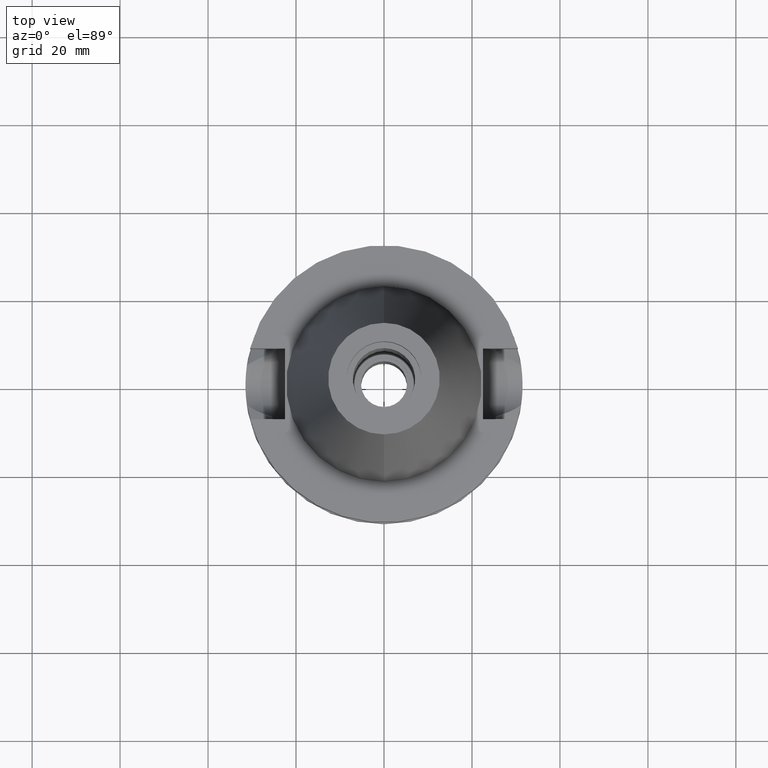
[diagram: clean part render]
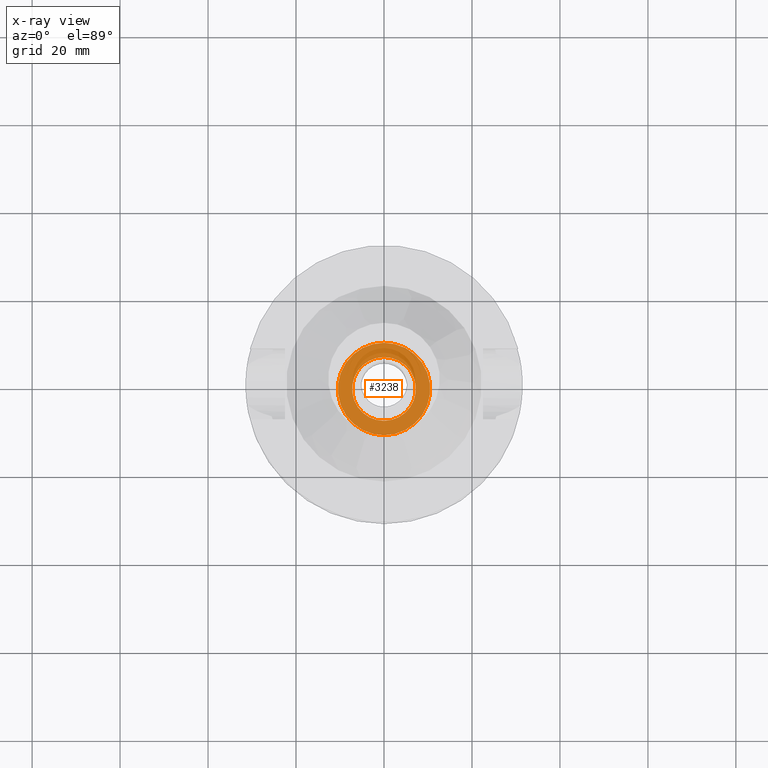
[diagram: x-ray — body ghosted, one internal face saturated and labeled with its STEP entity id]
A machine part, top view, then the same camera in x-ray: the body is ghosted and one INTERNAL B-rep face — a face not visible from any outside direction — is saturated and labeled: STEP entity #3238.
In plain terms, the highlighted planar face has unit normal (0, 0, -1).
Its self-contained STEP definition (entity closure, byte-faithful):
#22 = CARTESIAN_POINT ( 'NONE',  ( 0.0000000000000000000, 0.0000000000000000000, -8.200000000000001066 ) ) ;
#52 = FACE_BOUND ( 'NONE', #592, .T. ) ;
#198 = AXIS2_PLACEMENT_3D ( 'NONE', #22, #3113, #2842 ) ;
#318 = EDGE_LOOP ( 'NONE', ( #1509, #3216 ) ) ;
#332 = FACE_OUTER_BOUND ( 'NONE', #318, .T. ) ;
#378 = CARTESIAN_POINT ( 'NONE',  ( 0.0000000000000000000, 7.250000000000000000, -8.200000000000001066 ) ) ;
#399 = CARTESIAN_POINT ( 'NONE',  ( 0.0000000000000000000, 10.50000000000000000, -8.200000000000001066 ) ) ;
#475 = CARTESIAN_POINT ( 'NONE',  ( 0.0000000000000000000, -7.250000000000000000, -8.200000000000001066 ) ) ;
#592 = EDGE_LOOP ( 'NONE', ( #771, #3497 ) ) ;
#711 = CARTESIAN_POINT ( 'NONE',  ( 0.0000000000000000000, 0.0000000000000000000, -8.200000000000001066 ) ) ;
#729 = DIRECTION ( 'NONE',  ( 0.0000000000000000000, 0.0000000000000000000, -1.000000000000000000 ) ) ;
#771 = ORIENTED_EDGE ( 'NONE', *, *, #2990, .F. ) ;
#866 = DIRECTION ( 'NONE',  ( 0.0000000000000000000, 1.000000000000000000, 0.0000000000000000000 ) ) ;
#935 = CARTESIAN_POINT ( 'NONE',  ( 0.0000000000000000000, 0.0000000000000000000, -8.200000000000001066 ) ) ;
#939 = CIRCLE ( 'NONE', #950, 7.250000000000000000 ) ;
#950 = AXIS2_PLACEMENT_3D ( 'NONE', #935, #1993, #866 ) ;
#1075 = AXIS2_PLACEMENT_3D ( 'NONE', #711, #729, #2887 ) ;
#1290 = EDGE_CURVE ( 'NONE', #1622, #1994, #3543, .T. ) ;
#1332 = DIRECTION ( 'NONE',  ( 0.0000000000000000000, -1.000000000000000000, 0.0000000000000000000 ) ) ;
#1379 = EDGE_CURVE ( 'NONE', #1994, #1622, #1788, .T. ) ;
#1509 = ORIENTED_EDGE ( 'NONE', *, *, #1379, .F. ) ;
#1622 = VERTEX_POINT ( 'NONE', #2947 ) ;
#1660 = DIRECTION ( 'NONE',  ( 0.0000000000000000000, -1.000000000000000000, 0.0000000000000000000 ) ) ;
#1664 = VERTEX_POINT ( 'NONE', #475 ) ;
#1788 = CIRCLE ( 'NONE', #198, 10.50000000000000000 ) ;
#1808 = EDGE_CURVE ( 'NONE', #1664, #2604, #1817, .T. ) ;
#1817 = CIRCLE ( 'NONE', #2581, 7.250000000000000000 ) ;
#1878 = DIRECTION ( 'NONE',  ( 0.0000000000000000000, 0.0000000000000000000, 1.000000000000000000 ) ) ;
#1993 = DIRECTION ( 'NONE',  ( 0.0000000000000000000, 0.0000000000000000000, 1.000000000000000000 ) ) ;
#1994 = VERTEX_POINT ( 'NONE', #399 ) ;
#2270 = CARTESIAN_POINT ( 'NONE',  ( 0.0000000000000000000, 0.0000000000000000000, -8.200000000000001066 ) ) ;
#2487 = AXIS2_PLACEMENT_3D ( 'NONE', #2270, #2507, #1660 ) ;
#2507 = DIRECTION ( 'NONE',  ( 0.0000000000000000000, 0.0000000000000000000, -1.000000000000000000 ) ) ;
#2581 = AXIS2_PLACEMENT_3D ( 'NONE', #3313, #1878, #1332 ) ;
#2604 = VERTEX_POINT ( 'NONE', #378 ) ;
#2842 = DIRECTION ( 'NONE',  ( 0.0000000000000000000, 1.000000000000000000, 0.0000000000000000000 ) ) ;
#2887 = DIRECTION ( 'NONE',  ( 0.0000000000000000000, -1.000000000000000000, 0.0000000000000000000 ) ) ;
#2947 = CARTESIAN_POINT ( 'NONE',  ( 0.0000000000000000000, -10.50000000000000000, -8.200000000000001066 ) ) ;
#2990 = EDGE_CURVE ( 'NONE', #2604, #1664, #939, .T. ) ;
#3113 = DIRECTION ( 'NONE',  ( 0.0000000000000000000, 0.0000000000000000000, -1.000000000000000000 ) ) ;
#3216 = ORIENTED_EDGE ( 'NONE', *, *, #1290, .F. ) ;
#3238 = ADVANCED_FACE ( 'NONE', ( #332, #52 ), #3477, .F. ) ;
#3313 = CARTESIAN_POINT ( 'NONE',  ( 0.0000000000000000000, 0.0000000000000000000, -8.200000000000001066 ) ) ;
#3477 = PLANE ( 'NONE',  #1075 ) ;
#3497 = ORIENTED_EDGE ( 'NONE', *, *, #1808, .F. ) ;
#3543 = CIRCLE ( 'NONE', #2487, 10.50000000000000000 ) ;